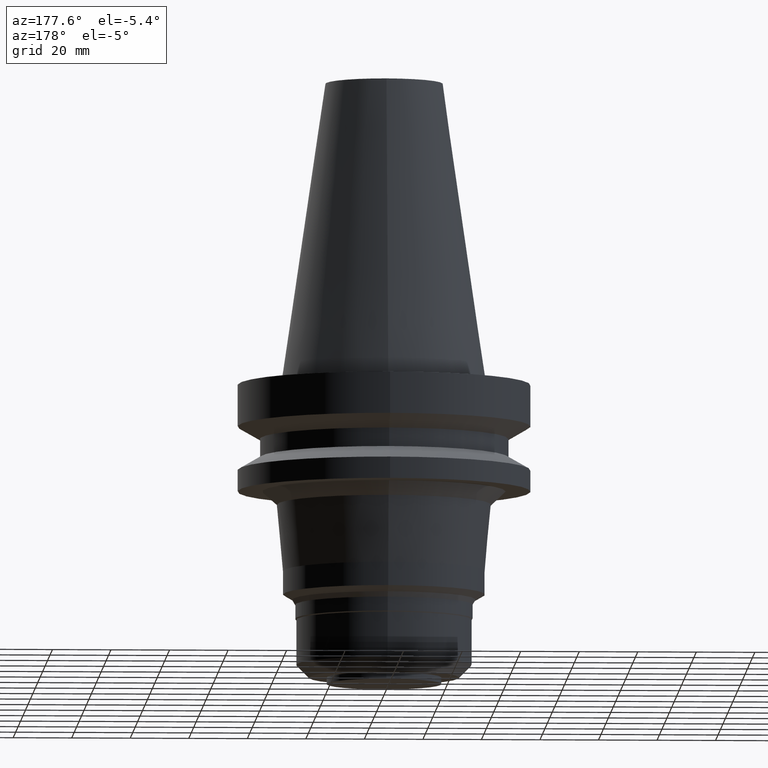
[diagram: clean part render]
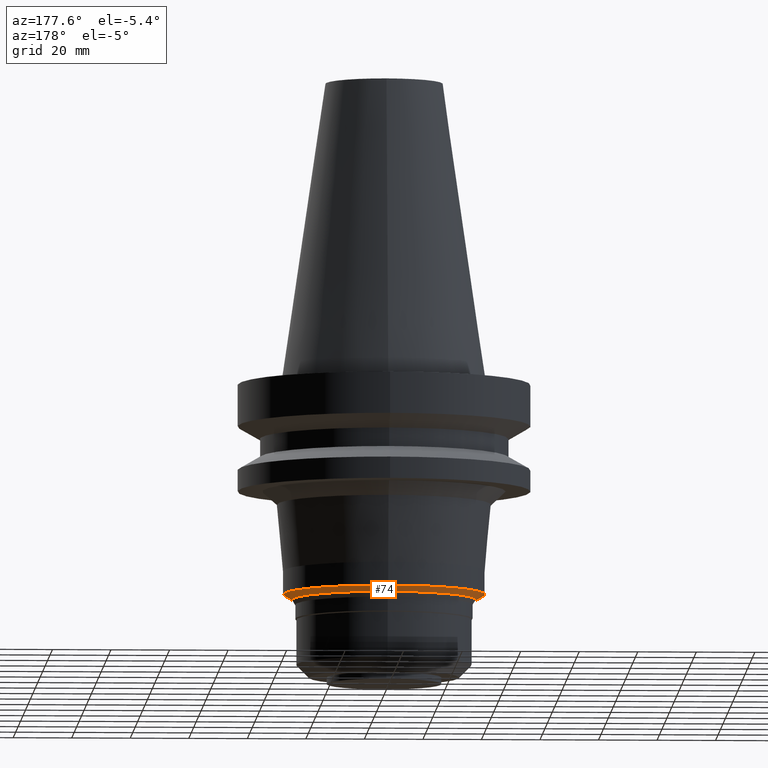
[diagram: same view with one face highlighted and labeled with its STEP entity id]
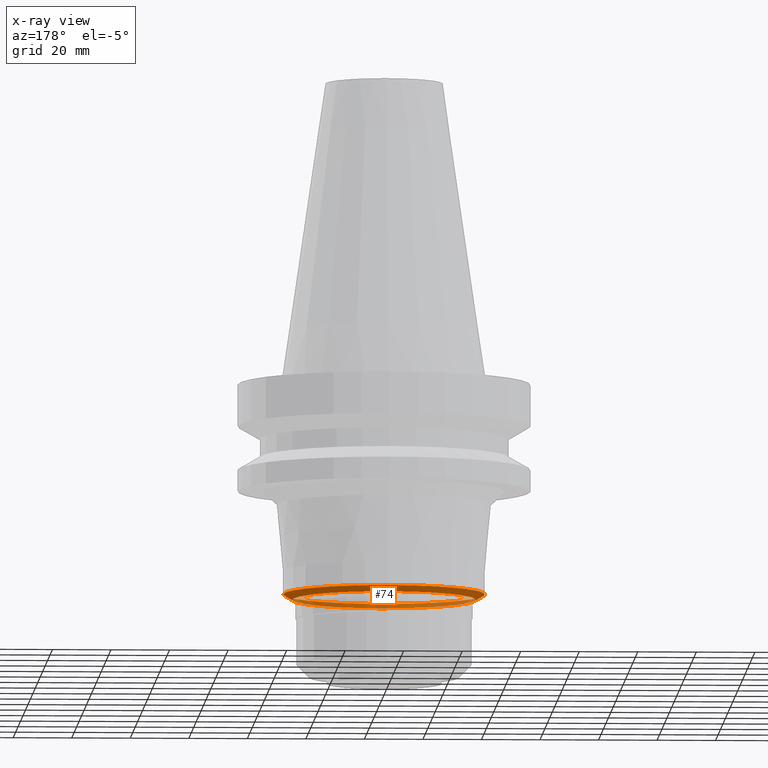
[diagram: x-ray of the same camera — body ghosted, the highlighted face saturated]
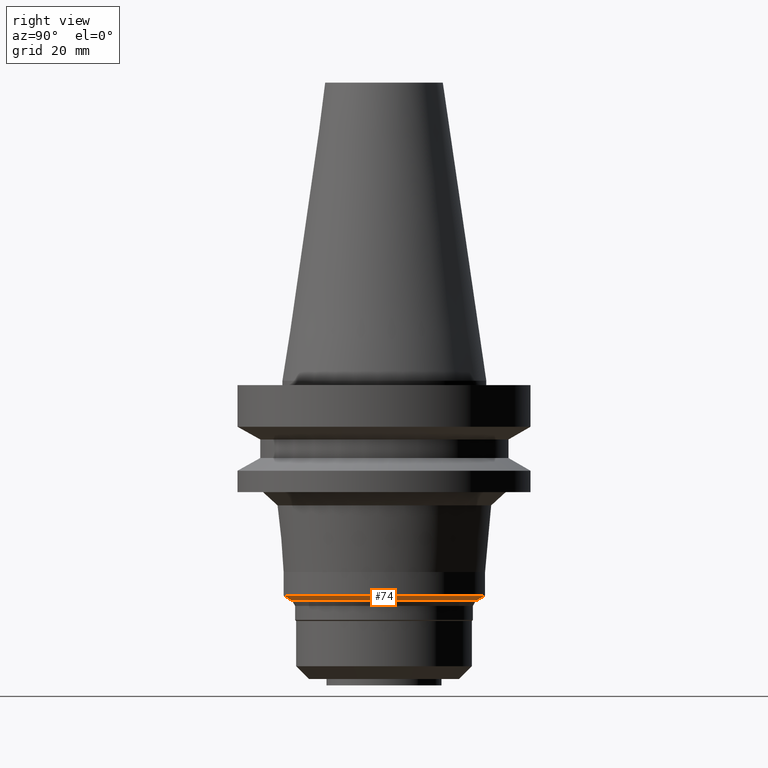
[diagram: same view with one face highlighted and labeled with its STEP entity id]
A machine part, auxiliary view. The second image highlights one B-rep face of the part: STEP entity #74.
The next image is the same camera in x-ray: the body ghosted, the highlighted face saturated — about 35% of this face is hidden behind the body in this view.
A second angle (right view) of the same face is appended — the face is thin or edge-on in the first view.
In plain terms, the highlighted conical surface has half-angle 60 deg.
Its self-contained STEP definition (entity closure, byte-faithful):
#68=EDGE_CURVE('Unnamed[1]',#195,#195,#196,.T.);
#74=ADVANCED_FACE('Unnamed[1]',(#203,#204),#205,.T.);
#124=EDGE_CURVE('Unnamed[1]',#281,#281,#282,.T.);
#195=VERTEX_POINT('',#376);
#196=CIRCLE('',#377,34.4999999999997);
#203=FACE_BOUND('',#386,.T.);
#204=FACE_BOUND('',#387,.T.);
#205=CONICAL_SURFACE('',#388,32.9249999999997,1.04719755119622);
#281=VERTEX_POINT('',#484);
#282=CIRCLE('',#485,31.3499999999997);
#376=CARTESIAN_POINT('',(4.48833051887502E-015,34.4999999999997,-73.2999999999996));
#377=AXIS2_PLACEMENT_3D('',#592,#593,#594);
#386=EDGE_LOOP('',(#601));
#387=EDGE_LOOP('',(#602));
#388=AXIS2_PLACEMENT_3D('',#603,#604,#605);
#484=CARTESIAN_POINT('',(4.59969091894124E-015,31.3499999999997,-75.1186533479486));
#485=AXIS2_PLACEMENT_3D('',#685,#686,#687);
#592=CARTESIAN_POINT('',(4.48833051887503E-015,8.97666103775005E-015,-73.2999999999996));
#593=DIRECTION('',(6.12323399573677E-017,1.22464679914717E-016,-1.0));
#594=DIRECTION('',(-1.23259516440784E-032,1.0,1.22464679914717E-016));
#601=ORIENTED_EDGE('',*,*,#124,.F.);
#602=ORIENTED_EDGE('',*,*,#68,.T.);
#603=CARTESIAN_POINT('',(4.54401071890813E-015,9.08802143781626E-015,-74.2093266739741));
#604=DIRECTION('',(-6.12323399573677E-017,-1.2246467991474E-016,1.0));
#605=DIRECTION('',(-1.23259516440795E-032,1.0,1.2246467991474E-016));
#685=CARTESIAN_POINT('',(4.59969091894124E-015,9.19938183788248E-015,-75.1186533479486));
#686=DIRECTION('',(6.12323399573676E-017,1.22464679914764E-016,-1.0));
#687=DIRECTION('',(-1.23259516440807E-032,1.0,1.22464679914764E-016));